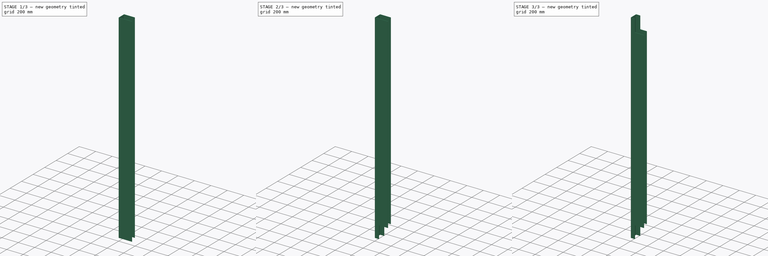
[diagram: build sequence overview — one tinted view per stage of 3, left to right]
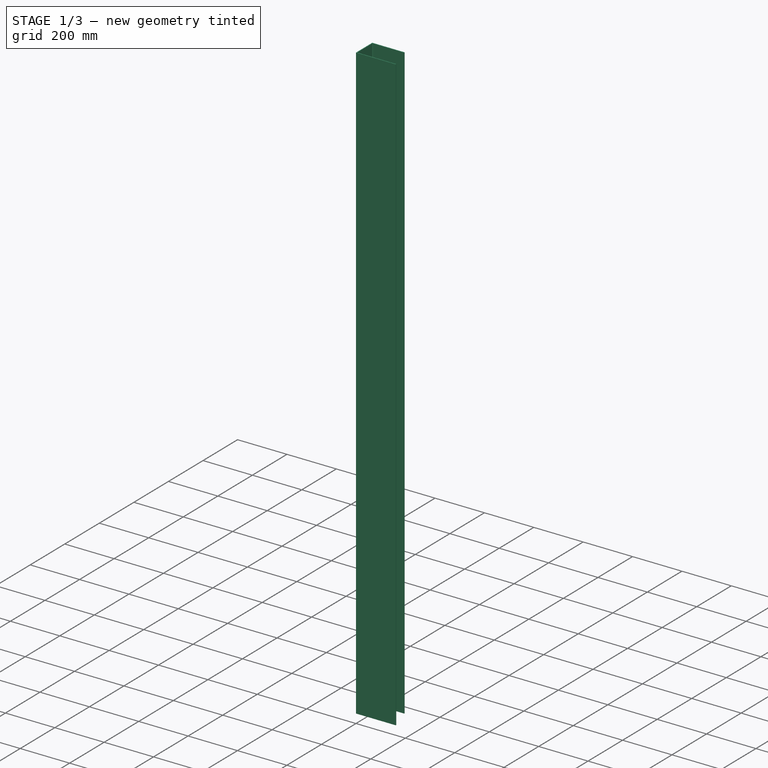
[diagram: stage 1 of 3 — iso view after this stage's code; geometry added in this stage tinted green]
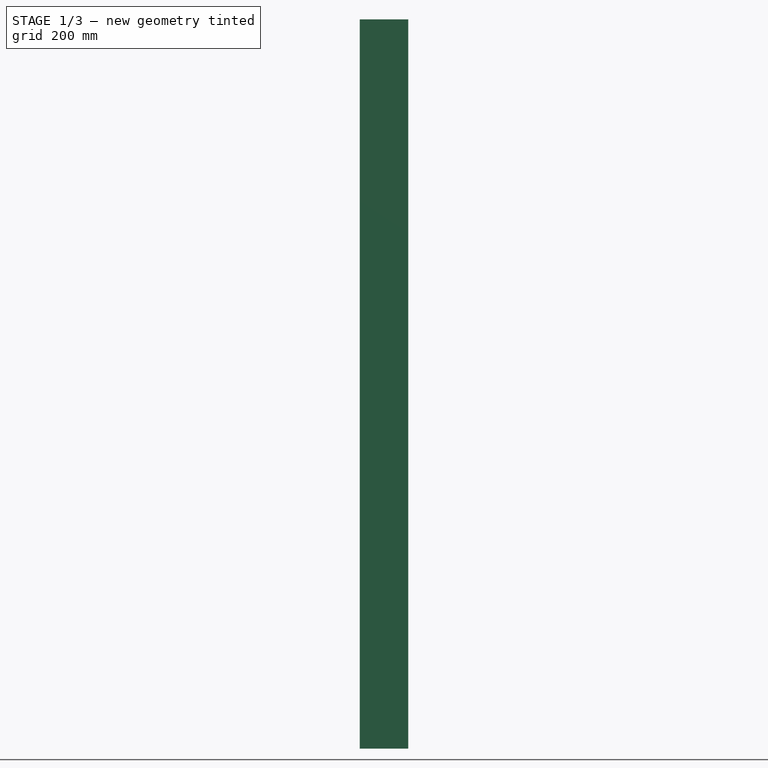
[diagram: stage 1 of 3 — front view after this stage's code; geometry added in this stage tinted green]
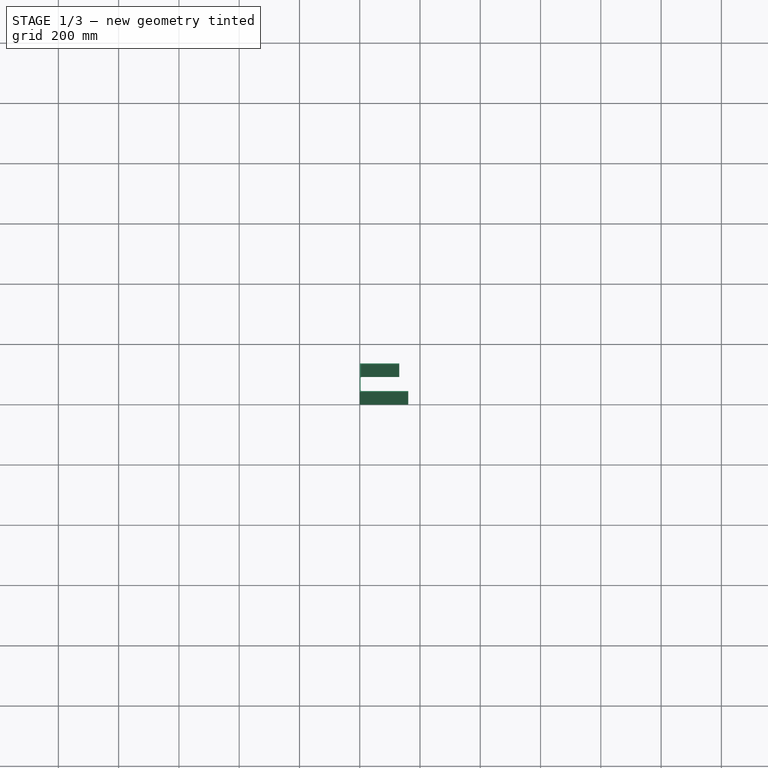
[diagram: stage 1 of 3 — top view after this stage's code; geometry added in this stage tinted green]
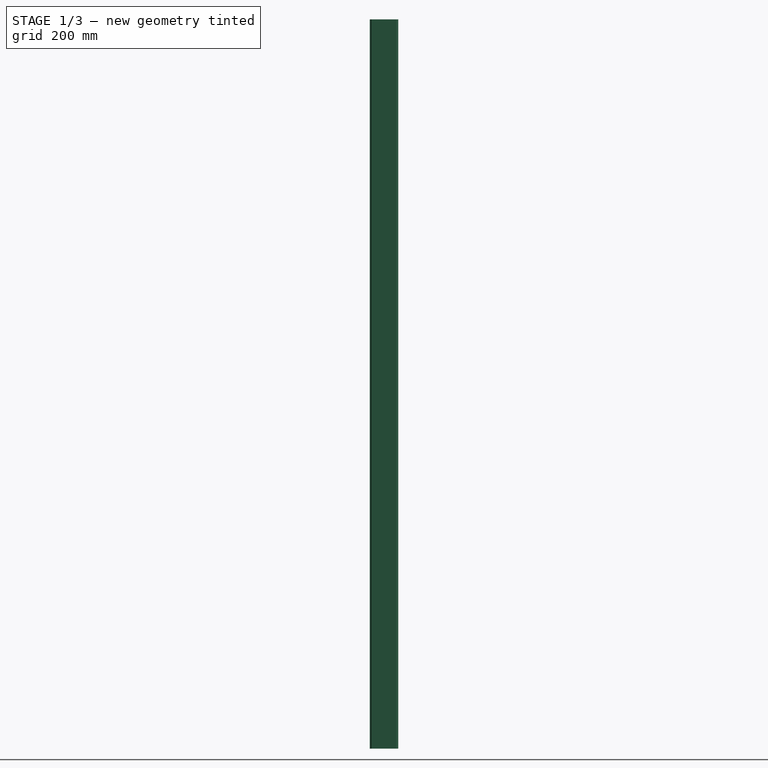
[diagram: stage 1 of 3 — right view after this stage's code; geometry added in this stage tinted green]
FCSTD DOCUMENT  (FreeCAD 0.18R4 (GitTag))
Label: front-member_top
License: All rights reserved
LicenseURL: http://en.wikipedia.org/wiki/All_rights_reserved
objects: PartDesign::Fillet×4, Sketcher::SketchObject×2, PartDesign::Pad×1, PartDesign::Pocket×1, PartDesign::Mirrored×1, PartDesign::Body×1
note: 12 computed .brp shape members not serialized (recipe doc carries the construction recipe); baked Part::Feature solids carry a one-line shape summary decoded from their .brp

FEATURE [Sketcher::SketchObject] Sketch
  MapMode = 5
  Support = -> [XY_Plane]
  sketch-geometry (8):
    g0: LineSegment StartX=0 StartY=94.5 StartZ=0 EndX=131 EndY=94.5 EndZ=0
    g1: LineSegment StartX=161 StartY=0 StartZ=0 EndX=0 EndY=0 EndZ=0
    g2: LineSegment StartX=0 StartY=0 StartZ=0 EndX=0 EndY=94.5 EndZ=0
    g3: LineSegment StartX=3 StartY=91.5 StartZ=0 EndX=131 EndY=91.5 EndZ=0
    g4: LineSegment StartX=161 StartY=3 StartZ=0 EndX=3 EndY=3 EndZ=0
    g5: LineSegment StartX=3 StartY=3 StartZ=0 EndX=3 EndY=91.5 EndZ=0
    g6: LineSegment StartX=161 StartY=3 StartZ=0 EndX=161 EndY=0 EndZ=0
    g7: LineSegment StartX=131 StartY=94.5 StartZ=0 EndX=131 EndY=91.5 EndZ=0
  constraints (23):
    c: Coincident(g1,g2)
    c: Coincident(g2,g0)
    c: Horizontal(g1)
    c: Vertical(g2)
    c: Coincident(g4,g5)
    c: Coincident(g5,g3)
    c: Horizontal(g4)
    c: Vertical(g5)
    c: DistanceY(g6,g6) = 3
    c: Coincident(g6,g4)
    c: Coincident(g6,g1)
    c: DistanceX(g1,g4) = 3
    c: DistanceY(g3,g0) = 3
    c: DistanceX(g1,g1) = 161
    c: Vertical(g6)
    c: DistanceY(g2,g2) = 94.5
    c: Parallel(g0,g3)
    c: Coincident(g1,g-1)
    c: Vertical(g7)
    c: Coincident(g7,g3)
    c: DistanceX(g0,g0) = 131
    c: Coincident(g7,g0)
    c: Horizontal(g0)
FEATURE [PartDesign::Pad] Pad
  Length = 2420
  Length2 = 100
  Midplane = true
  Profile = -> Sketch
  Type = 0
FEATURE [PartDesign::Fillet] Fillet
  Base = -> Pad [Edge20,Edge17]
  BaseFeature = -> Pad
  Radius = 3
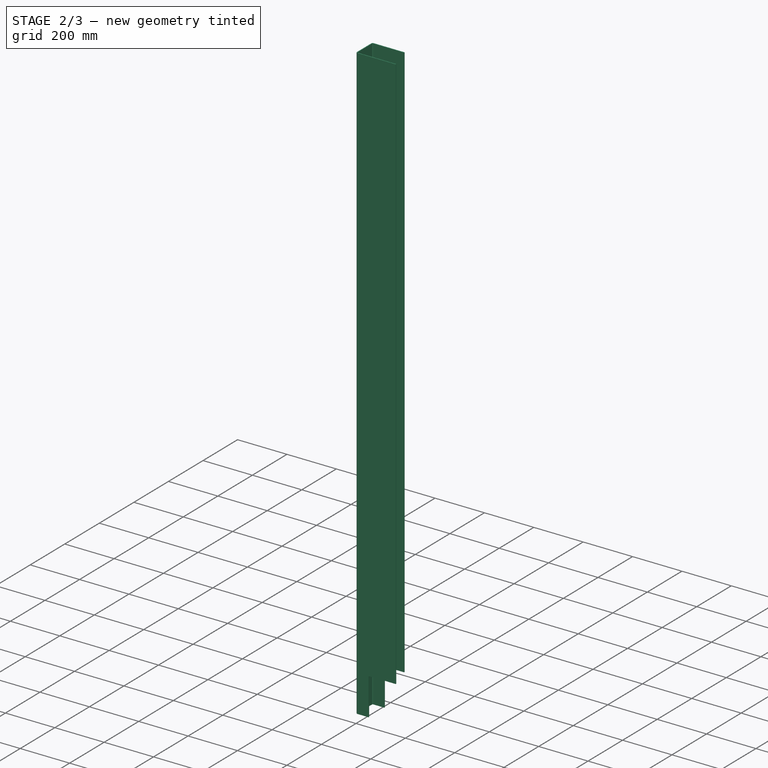
[diagram: stage 2 of 3 — iso view after this stage's code; geometry added in this stage tinted green]
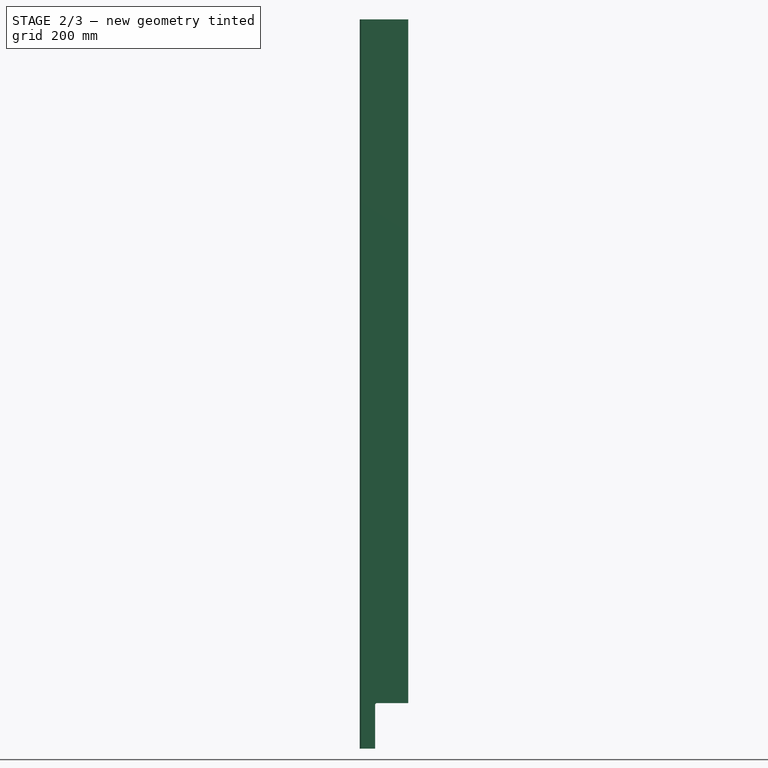
[diagram: stage 2 of 3 — front view after this stage's code; geometry added in this stage tinted green]
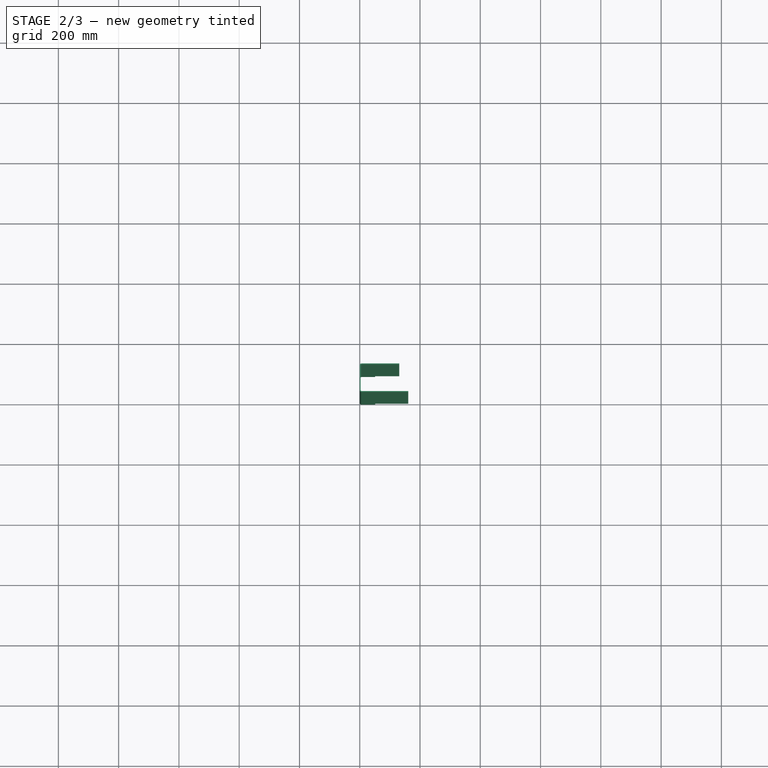
[diagram: stage 2 of 3 — top view after this stage's code; geometry added in this stage tinted green]
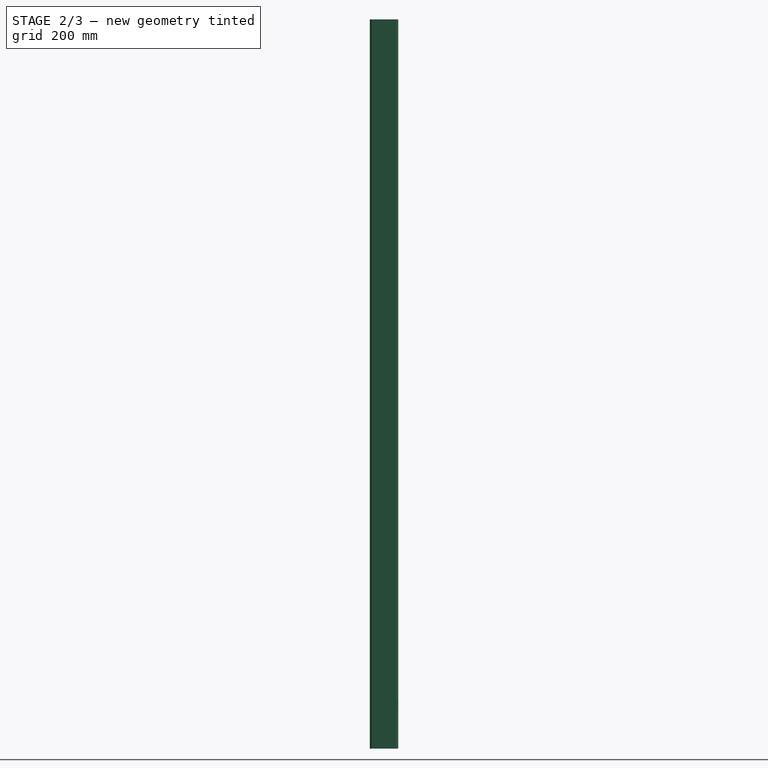
[diagram: stage 2 of 3 — right view after this stage's code; geometry added in this stage tinted green]
FEATURE [PartDesign::Fillet] Fillet001
  Base = -> Fillet [Edge28,Edge26]
  BaseFeature = -> Fillet
  Radius = 6
FEATURE [Sketcher::SketchObject] Sketch001
  ExternalGeometry = -> [Fillet001]
  MapMode = 5
  Placement = pos=(0,0,0) rot=(1,0,0;1.5708rad)
  Support = -> [Fillet001]
  sketch-geometry (4):
    g0: LineSegment StartX=161 StartY=-1210 StartZ=0 EndX=51 EndY=-1210 EndZ=0
    g1: LineSegment StartX=51 StartY=-1210 StartZ=0 EndX=51 EndY=-1059 EndZ=0
    g2: LineSegment StartX=51 StartY=-1059 StartZ=0 EndX=161 EndY=-1059 EndZ=0
    g3: LineSegment StartX=161 StartY=-1059 StartZ=0 EndX=161 EndY=-1210 EndZ=0
  constraints (11):
    c: DistanceX(g2,g2) = 110
    c: DistanceY(g1,g1) = 151
    c: Coincident(g1,g2)
    c: Coincident(g3,g2)
    c: Coincident(g3,g0)
    c: Coincident(g1,g0)
    c: Horizontal(g2)
    c: Horizontal(g0)
    c: Vertical(g3)
    c: Vertical(g1)
    c: Coincident(g0,g-3)
FEATURE [PartDesign::Pocket] Pocket
  BaseFeature = -> Fillet001
  Length = 5
  Length2 = 100
  Profile = -> Sketch001
  Type = 1
FEATURE [PartDesign::Fillet] Fillet002
  Base = -> Pocket [Edge40,Edge24]
  BaseFeature = -> Pocket
  Radius = 6
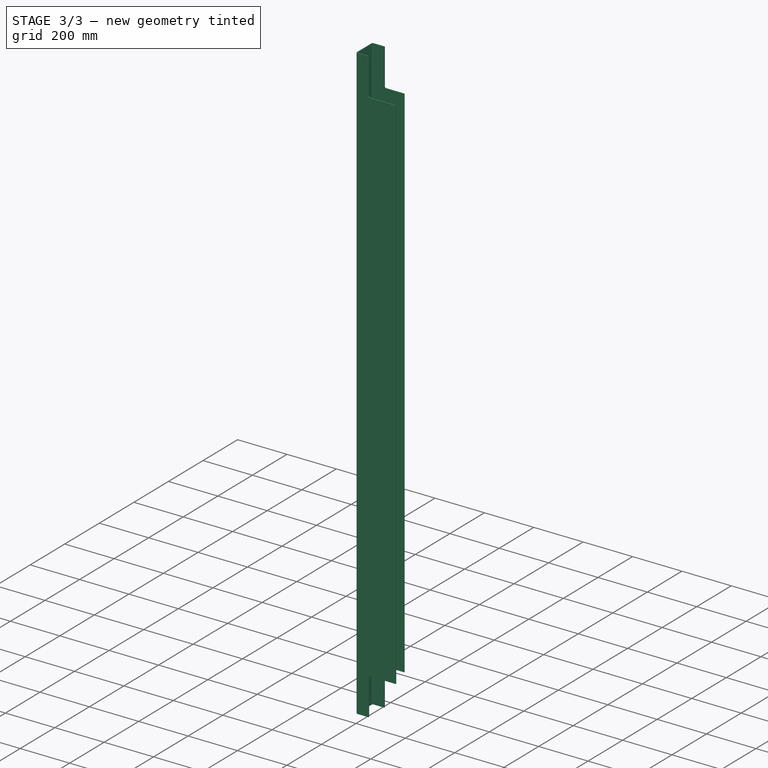
[diagram: stage 3 of 3 — iso view after this stage's code; geometry added in this stage tinted green]
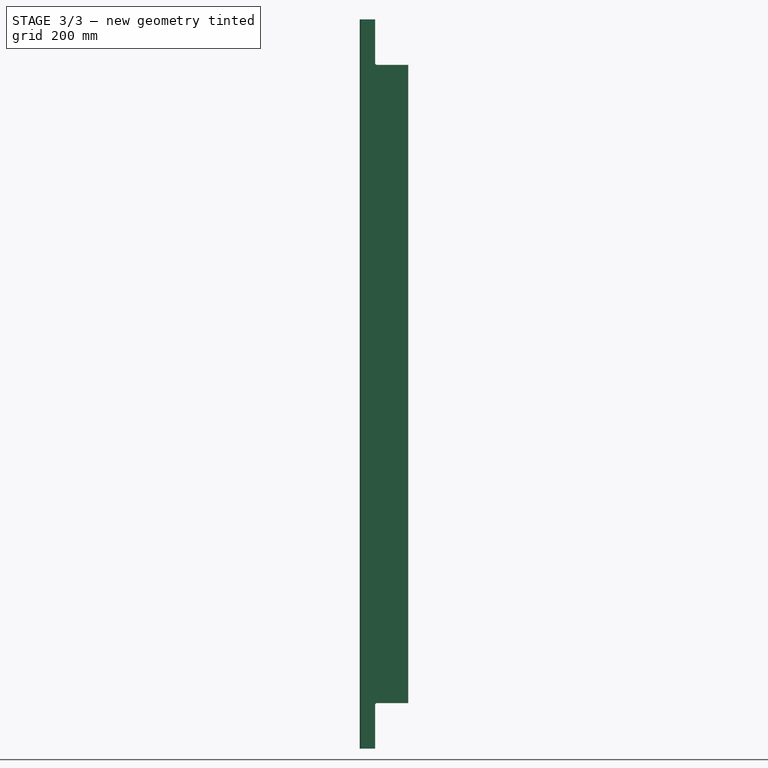
[diagram: stage 3 of 3 — front view after this stage's code; geometry added in this stage tinted green]
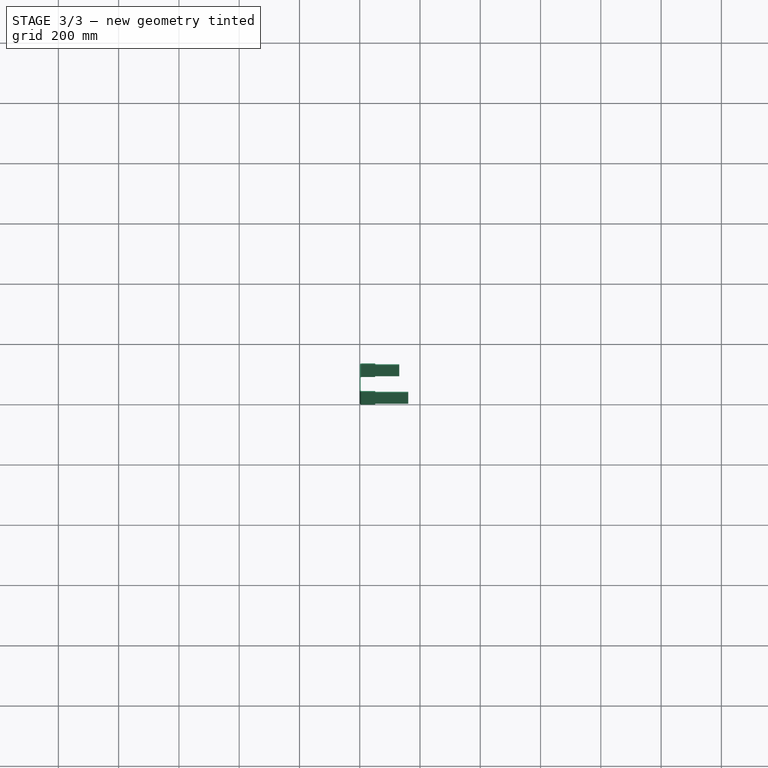
[diagram: stage 3 of 3 — top view after this stage's code; geometry added in this stage tinted green]
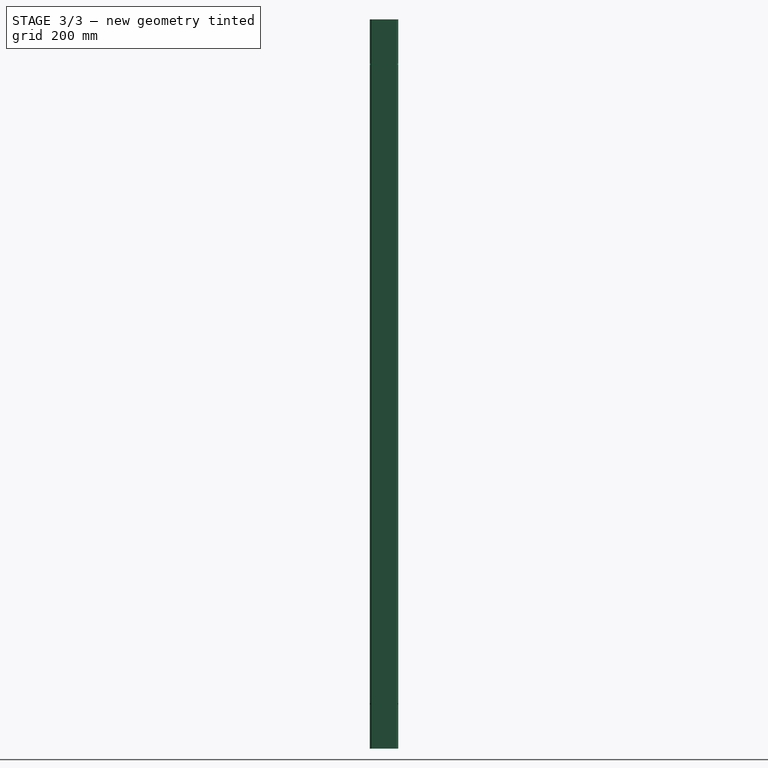
[diagram: stage 3 of 3 — right view after this stage's code; geometry added in this stage tinted green]
FEATURE [PartDesign::Mirrored] Mirrored
  BaseFeature = -> Fillet002
  MirrorPlane = -> XY_Plane
  Originals = -> [Pocket]
FEATURE [PartDesign::Fillet] Fillet003
  Base = -> Mirrored [Edge63,Edge37]
  BaseFeature = -> Mirrored
  Radius = 6
FEATURE [PartDesign::Body] Body
  Group = -> [Sketch,Pad,Fillet,Fillet001,Sketch001,Pocket,Fillet002,Mirrored,Fillet003]
  Origin = -> Origin
  Tip = -> Fillet003
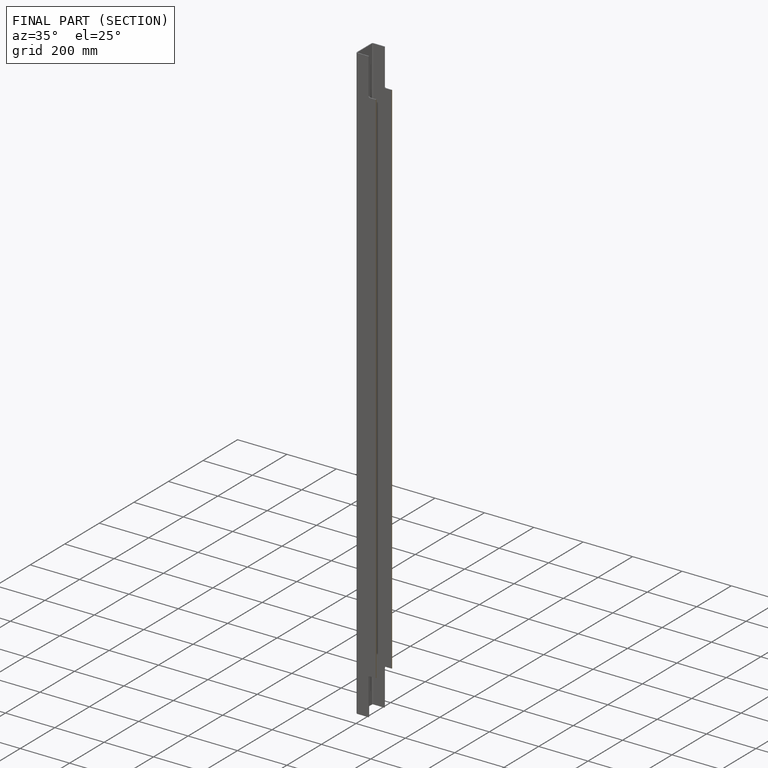
[diagram: finished part — half-section view (interior)]
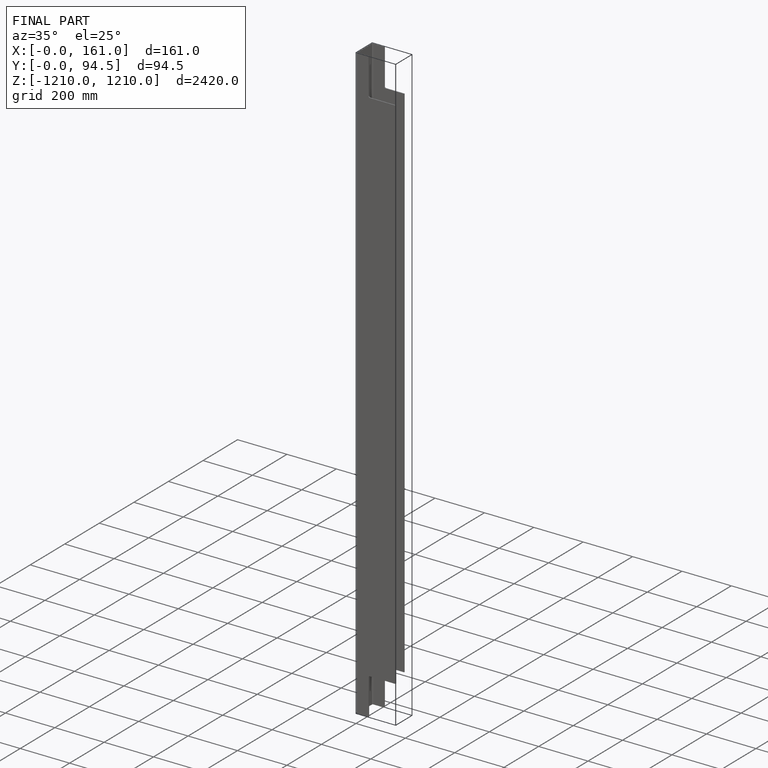
[diagram: finished part — iso view with bounding-box wireframe]
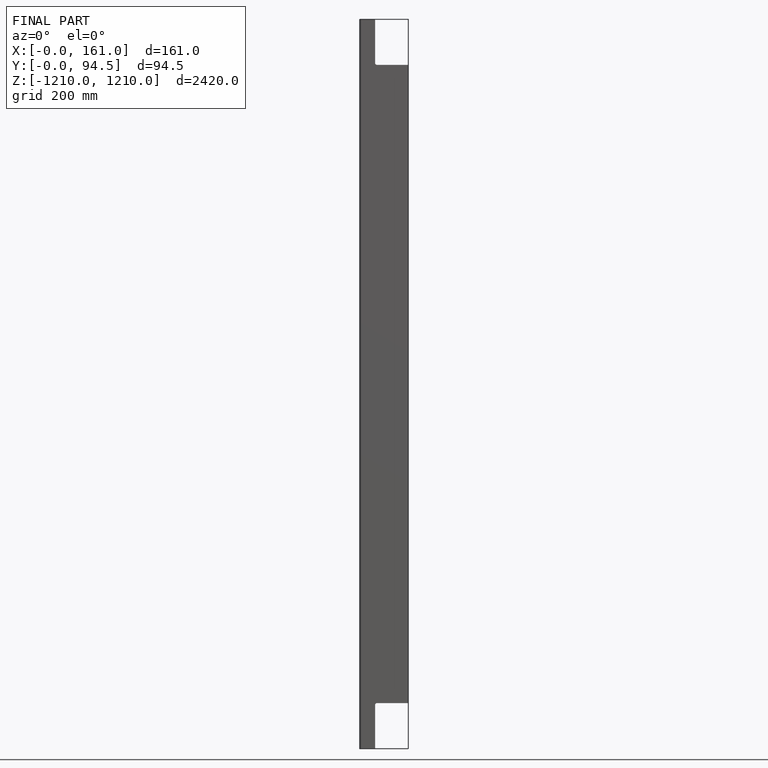
[diagram: finished part — front view with bounding-box wireframe]
